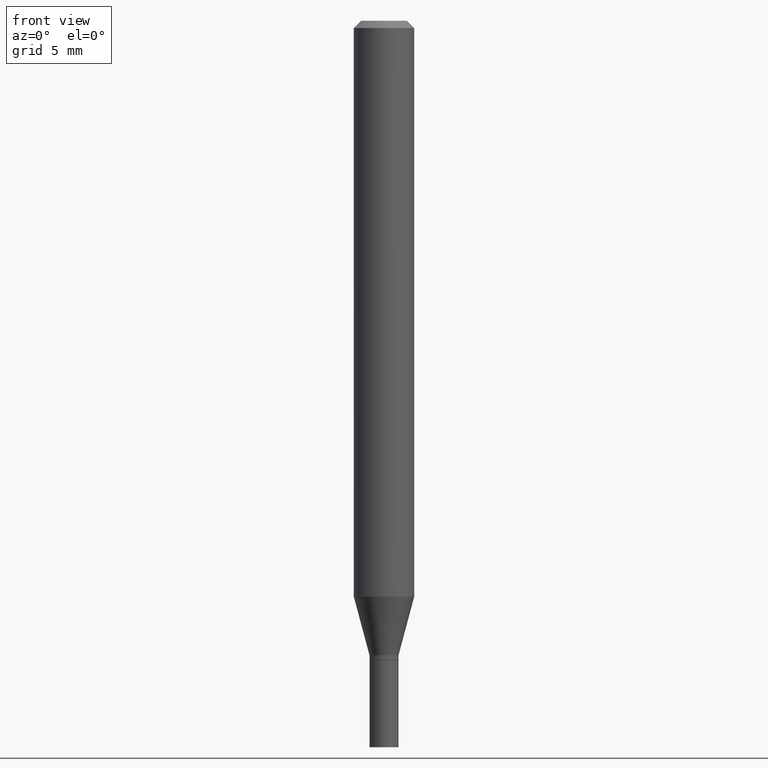
[diagram: clean part render]
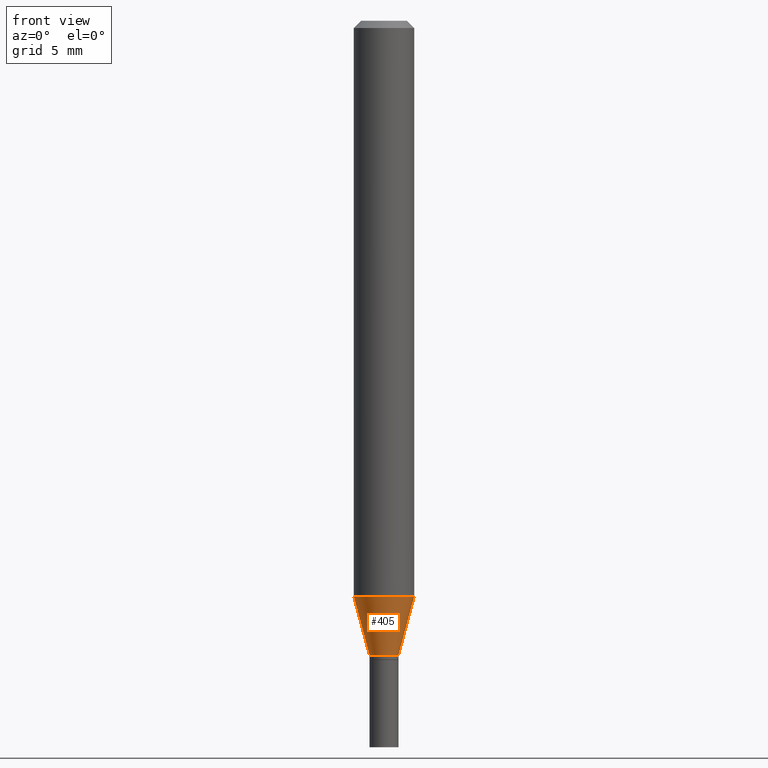
[diagram: same view with one face highlighted and labeled with its STEP entity id]
A machine part, front view. The second image highlights one B-rep face of the part: STEP entity #405.
In plain terms, the highlighted conical surface has half-angle 15 deg.
Its self-contained STEP definition (entity closure, byte-faithful):
#8 = EDGE_LOOP ( 'NONE', ( #254, #114, #59, #334 ) ) ;
#14 = CARTESIAN_POINT ( 'NONE',  ( 0.06250000000000000000, -4.586788184357076846E-15, -1.188708348754012878 ) ) ;
#27 = DIRECTION ( 'NONE',  ( -2.445468806185136597E-29, 3.491481338843145583E-15, 1.000000000000000000 ) ) ;
#28 = AXIS2_PLACEMENT_3D ( 'NONE', #414, #27, #440 ) ;
#30 = VERTEX_POINT ( 'NONE', #237 ) ;
#48 = LINE ( 'NONE', #358, #400 ) ;
#59 = ORIENTED_EDGE ( 'NONE', *, *, #312, .T. ) ;
#62 = VERTEX_POINT ( 'NONE', #14 ) ;
#73 = EDGE_CURVE ( 'NONE', #180, #62, #167, .T. ) ;
#88 = DIRECTION ( 'NONE',  ( -2.445468806185136597E-29, 3.491481338843145583E-15, 1.000000000000000000 ) ) ;
#114 = ORIENTED_EDGE ( 'NONE', *, *, #201, .T. ) ;
#139 = CONICAL_SURFACE ( 'NONE', #187, 0.03000000000000020012, 0.2617993877991501295 ) ;
#159 = CIRCLE ( 'NONE', #438, 0.03000000000000020012 ) ;
#167 = CIRCLE ( 'NONE', #28, 0.06250000000000000000 ) ;
#171 = DIRECTION ( 'NONE',  ( 1.000000000000000000, -6.982962677686253300E-15, 0.000000000000000000 ) ) ;
#176 = DIRECTION ( 'NONE',  ( -2.445468806185136597E-29, 3.491481338843145583E-15, 1.000000000000000000 ) ) ;
#180 = VERTEX_POINT ( 'NONE', #282 ) ;
#187 = AXIS2_PLACEMENT_3D ( 'NONE', #397, #88, #221 ) ;
#195 = CARTESIAN_POINT ( 'NONE',  ( 0.03000000000000020012, -4.783329434215110683E-15, -1.310000000000000275 ) ) ;
#201 = EDGE_CURVE ( 'NONE', #30, #441, #159, .T. ) ;
#209 = CARTESIAN_POINT ( 'NONE',  ( 3.203564136102529457E-29, -4.573840553884521577E-15, -1.310000000000000275 ) ) ;
#221 = DIRECTION ( 'NONE',  ( 1.000000000000000000, -6.982962677686253300E-15, 0.000000000000000000 ) ) ;
#223 = EDGE_CURVE ( 'NONE', #30, #180, #48, .T. ) ;
#231 = DIRECTION ( 'NONE',  ( 0.2588190451025214611, 1.565188264969621573E-15, 0.9659258262890682012 ) ) ;
#237 = CARTESIAN_POINT ( 'NONE',  ( -0.03000000000000020012, -4.033470770154056946E-15, -1.310000000000000275 ) ) ;
#242 = VECTOR ( 'NONE', #231, 39.37007874015747433 ) ;
#254 = ORIENTED_EDGE ( 'NONE', *, *, #223, .F. ) ;
#282 = CARTESIAN_POINT ( 'NONE',  ( -0.06250000000000000000, -3.706263807151623349E-15, -1.188708348754012878 ) ) ;
#312 = EDGE_CURVE ( 'NONE', #441, #62, #333, .T. ) ;
#333 = LINE ( 'NONE', #195, #242 ) ;
#334 = ORIENTED_EDGE ( 'NONE', *, *, #73, .F. ) ;
#358 = CARTESIAN_POINT ( 'NONE',  ( -0.03000000000000020012, -4.360677733156489754E-15, -1.310000000000000275 ) ) ;
#397 = CARTESIAN_POINT ( 'NONE',  ( 3.203564136102529457E-29, -4.573840553884521577E-15, -1.310000000000000275 ) ) ;
#400 = VECTOR ( 'NONE', #466, 39.37007874015747433 ) ;
#405 = ADVANCED_FACE ( 'NONE', ( #435 ), #139, .T. ) ;
#414 = CARTESIAN_POINT ( 'NONE',  ( 2.906949186529780913E-29, -4.150353017001685176E-15, -1.188708348754012878 ) ) ;
#427 = CARTESIAN_POINT ( 'NONE',  ( 0.03000000000000020012, -4.783329434215110683E-15, -1.310000000000000275 ) ) ;
#435 = FACE_OUTER_BOUND ( 'NONE', #8, .T. ) ;
#438 = AXIS2_PLACEMENT_3D ( 'NONE', #209, #176, #171 ) ;
#440 = DIRECTION ( 'NONE',  ( 1.000000000000000000, -6.982962677686262766E-15, 0.000000000000000000 ) ) ;
#441 = VERTEX_POINT ( 'NONE', #427 ) ;
#466 = DIRECTION ( 'NONE',  ( -0.2588190451025214611, 5.211531920934551042E-15, 0.9659258262890682012 ) ) ;